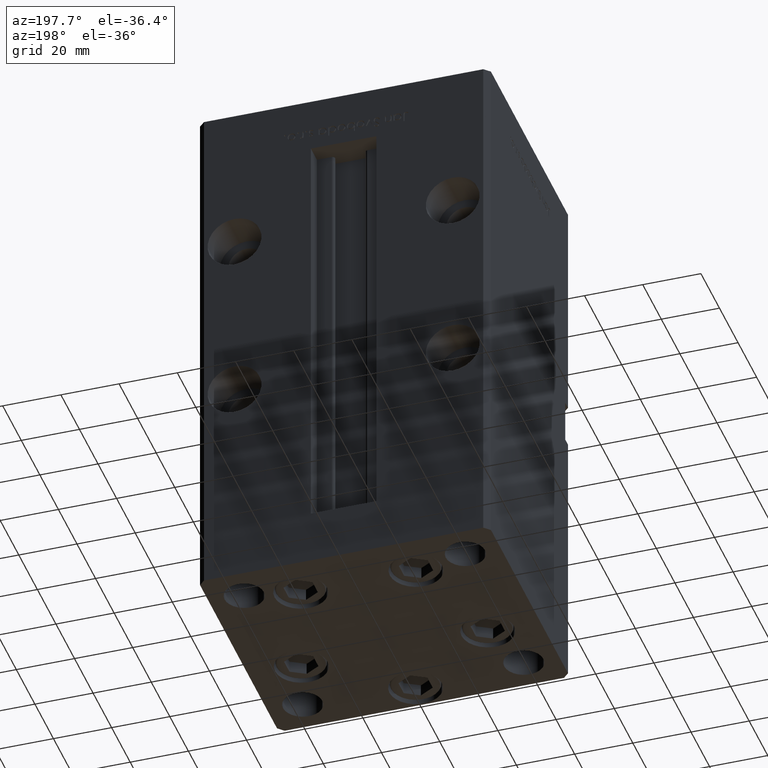
[diagram: clean part render]
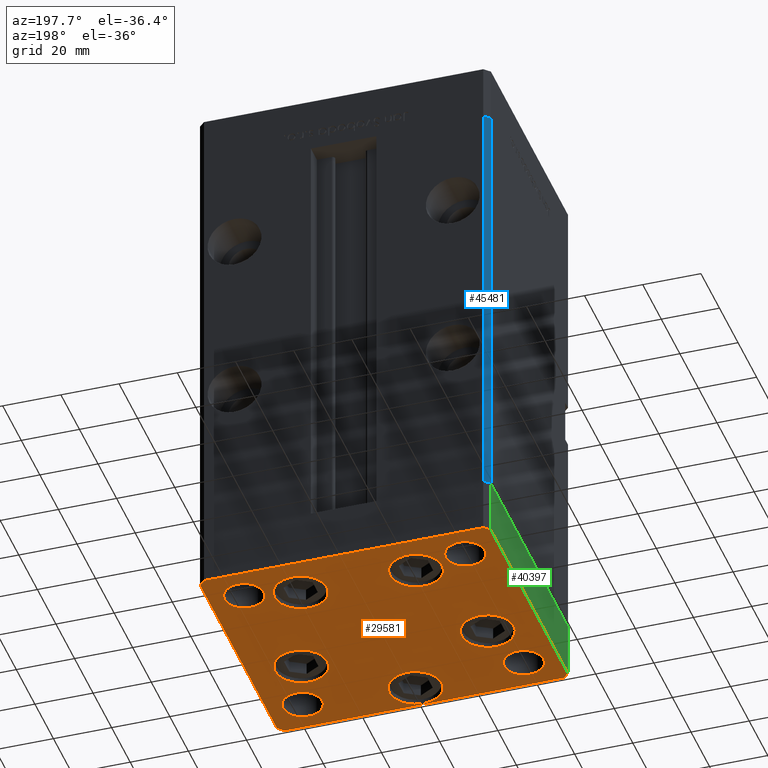
[diagram: same view with three faces highlighted in distinct colors, each labeled with its STEP entity id]
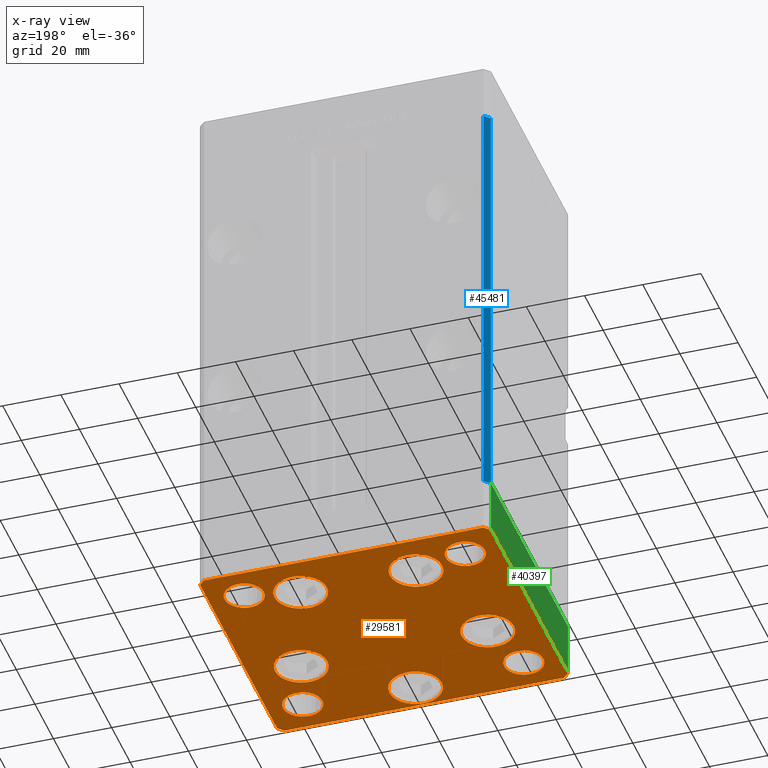
[diagram: x-ray of the same camera — body ghosted, the three highlighted faces saturated]
A machine part, auxiliary view with three faces highlighted in distinct colors.
The next image is the same camera in x-ray (body ghosted, the three faces saturated) — at least one of them is partly hidden behind the body in this view.
Their STEP definitions:

[orange] entity #29581 — the highlighted planar face has unit normal (0, 0, -1).
#52 = CIRCLE ( 'NONE', #30966, 6.749999999999999112 ) ;
#306 = DIRECTION ( 'NONE',  ( -0.7071067811865474617, 0.7071067811865474617, 0.000000000000000000 ) ) ;
#396 = AXIS2_PLACEMENT_3D ( 'NONE', #30750, #26975, #6271 ) ;
#981 = PLANE ( 'NONE',  #27596 ) ;
#1086 = CARTESIAN_POINT ( 'NONE',  ( 32.05550741379015278, -11.33333333333333037, 0.000000000000000000 ) ) ;
#1281 = LINE ( 'NONE', #30846, #45298 ) ;
#1287 = VERTEX_POINT ( 'NONE', #41773 ) ;
#1307 = DIRECTION ( 'NONE',  ( 0.000000000000000000, -0.000000000000000000, -1.000000000000000000 ) ) ;
#1400 = VERTEX_POINT ( 'NONE', #46856 ) ;
#1490 = EDGE_CURVE ( 'NONE', #19052, #15941, #44417, .T. ) ;
#1642 = AXIS2_PLACEMENT_3D ( 'NONE', #8586, #21211, #25267 ) ;
#1733 = LINE ( 'NONE', #32047, #11672 ) ;
#1771 = CARTESIAN_POINT ( 'NONE',  ( 49.99999999999992184, 41.49999999999998579, 0.000000000000000000 ) ) ;
#1773 = ORIENTED_EDGE ( 'NONE', *, *, #47420, .F. ) ;
#2261 = DIRECTION ( 'NONE',  ( 0.000000000000000000, -0.000000000000000000, -1.000000000000000000 ) ) ;
#2469 = DIRECTION ( 'NONE',  ( 1.000000000000000000, 0.000000000000000000, 0.000000000000000000 ) ) ;
#2500 = VERTEX_POINT ( 'NONE', #28803 ) ;
#2774 = ORIENTED_EDGE ( 'NONE', *, *, #43416, .F. ) ;
#2887 = CARTESIAN_POINT ( 'NONE',  ( 44.75000000000000000, -31.49999999999999289, 0.000000000000000000 ) ) ;
#3085 = AXIS2_PLACEMENT_3D ( 'NONE', #48079, #49082, #45033 ) ;
#3505 = DIRECTION ( 'NONE',  ( 0.000000000000000000, -0.000000000000000000, -1.000000000000000000 ) ) ;
#3568 = DIRECTION ( 'NONE',  ( 1.000000000000000000, 0.000000000000000000, 0.000000000000000000 ) ) ;
#3719 = DIRECTION ( 'NONE',  ( 0.000000000000000000, -0.000000000000000000, -1.000000000000000000 ) ) ;
#3876 = EDGE_CURVE ( 'NONE', #1400, #16276, #35657, .T. ) ;
#4382 = DIRECTION ( 'NONE',  ( 0.000000000000000000, -0.000000000000000000, -1.000000000000000000 ) ) ;
#4462 = VERTEX_POINT ( 'NONE', #45287 ) ;
#4759 = DIRECTION ( 'NONE',  ( -0.000000000000000000, 0.000000000000000000, 1.000000000000000000 ) ) ;
#5020 = FACE_BOUND ( 'NONE', #32022, .T. ) ;
#5085 = DIRECTION ( 'NONE',  ( 1.000000000000000000, 0.000000000000000000, 0.000000000000000000 ) ) ;
#5241 = EDGE_LOOP ( 'NONE', ( #24944, #47815, #18597, #10964, #10290, #32202, #12845, #45962 ) ) ;
#5277 = EDGE_CURVE ( 'NONE', #31648, #10567, #32261, .T. ) ;
#5287 = FACE_BOUND ( 'NONE', #37137, .T. ) ;
#5299 = ORIENTED_EDGE ( 'NONE', *, *, #23435, .T. ) ;
#5725 = VERTEX_POINT ( 'NONE', #33825 ) ;
#5831 = CARTESIAN_POINT ( 'NONE',  ( -50.00000000000000711, 41.49999999999995026, 0.000000000000000000 ) ) ;
#5896 = DIRECTION ( 'NONE',  ( 1.000000000000000000, 0.000000000000000000, 0.000000000000000000 ) ) ;
#6189 = EDGE_CURVE ( 'NONE', #15941, #32800, #1733, .T. ) ;
#6271 = DIRECTION ( 'NONE',  ( 1.000000000000000000, 0.000000000000000000, 0.000000000000000000 ) ) ;
#6681 = VECTOR ( 'NONE', #20938, 1000.000000000000000 ) ;
#7265 = CIRCLE ( 'NONE', #50189, 6.749999999999999112 ) ;
#7393 = AXIS2_PLACEMENT_3D ( 'NONE', #23748, #31278, #3568 ) ;
#7568 = CIRCLE ( 'NONE', #12711, 9.000000000000001776 ) ;
#7667 = ORIENTED_EDGE ( 'NONE', *, *, #3876, .T. ) ;
#7761 = CIRCLE ( 'NONE', #28338, 8.999999999999998224 ) ;
#8175 = VERTEX_POINT ( 'NONE', #18090 ) ;
#8280 = CARTESIAN_POINT ( 'NONE',  ( 23.05550741379014923, -11.33333333333333037, 0.000000000000000000 ) ) ;
#8456 = ORIENTED_EDGE ( 'NONE', *, *, #27555, .T. ) ;
#8586 = CARTESIAN_POINT ( 'NONE',  ( 38.00000000000000000, -31.49999999999999289, 0.000000000000000000 ) ) ;
#9061 = DIRECTION ( 'NONE',  ( 1.000000000000000000, 0.000000000000000000, 0.000000000000000000 ) ) ;
#9537 = CARTESIAN_POINT ( 'NONE',  ( -44.75000000000000000, 31.50000000000000000, 0.000000000000000000 ) ) ;
#9932 = CARTESIAN_POINT ( 'NONE',  ( 19.82068048781373193, 27.62500000000000000, 0.000000000000000000 ) ) ;
#10290 = ORIENTED_EDGE ( 'NONE', *, *, #25406, .T. ) ;
#10332 = EDGE_LOOP ( 'NONE', ( #5299, #7667 ) ) ;
#10567 = VERTEX_POINT ( 'NONE', #42595 ) ;
#10651 = CARTESIAN_POINT ( 'NONE',  ( -50.00000000000000000, -41.50000000000000000, 0.000000000000000000 ) ) ;
#10964 = ORIENTED_EDGE ( 'NONE', *, *, #13181, .T. ) ;
#11186 = ORIENTED_EDGE ( 'NONE', *, *, #38516, .T. ) ;
#11369 = AXIS2_PLACEMENT_3D ( 'NONE', #30618, #1307, #5085 ) ;
#11592 = CARTESIAN_POINT ( 'NONE',  ( -32.05550741379015278, -11.33333333333333925, 0.000000000000000000 ) ) ;
#11602 = CIRCLE ( 'NONE', #27075, 6.749999999999999112 ) ;
#11672 = VECTOR ( 'NONE', #18142, 1000.000000000000000 ) ;
#11702 = LINE ( 'NONE', #49039, #43828 ) ;
#11928 = ORIENTED_EDGE ( 'NONE', *, *, #48209, .T. ) ;
#12008 = EDGE_CURVE ( 'NONE', #27109, #2500, #7568, .T. ) ;
#12292 = CARTESIAN_POINT ( 'NONE',  ( 47.99999999999990763, 43.50000000000000000, 0.000000000000000000 ) ) ;
#12481 = ORIENTED_EDGE ( 'NONE', *, *, #51299, .T. ) ;
#12564 = EDGE_CURVE ( 'NONE', #32800, #8175, #1281, .T. ) ;
#12580 = VERTEX_POINT ( 'NONE', #39418 ) ;
#12711 = AXIS2_PLACEMENT_3D ( 'NONE', #11592, #43568, #2469 ) ;
#12845 = ORIENTED_EDGE ( 'NONE', *, *, #46149, .T. ) ;
#13019 = ORIENTED_EDGE ( 'NONE', *, *, #16947, .T. ) ;
#13181 = EDGE_CURVE ( 'NONE', #8175, #32987, #40810, .T. ) ;
#13588 = VERTEX_POINT ( 'NONE', #47348 ) ;
#13973 = AXIS2_PLACEMENT_3D ( 'NONE', #46139, #33542, #50426 ) ;
#14255 = EDGE_LOOP ( 'NONE', ( #29991, #41208 ) ) ;
#14423 = ORIENTED_EDGE ( 'NONE', *, *, #5277, .T. ) ;
#15813 = ORIENTED_EDGE ( 'NONE', *, *, #49250, .T. ) ;
#15941 = VERTEX_POINT ( 'NONE', #50203 ) ;
#16214 = DIRECTION ( 'NONE',  ( 0.7071067811865474617, -0.7071067811865474617, 0.000000000000000000 ) ) ;
#16276 = VERTEX_POINT ( 'NONE', #41277 ) ;
#16642 = CARTESIAN_POINT ( 'NONE',  ( 50.00000000000000000, -41.49999999999999289, 0.000000000000000000 ) ) ;
#16947 = EDGE_CURVE ( 'NONE', #46825, #32863, #25742, .T. ) ;
#16988 = CARTESIAN_POINT ( 'NONE',  ( -23.05550741379014923, -11.33333333333333748, 0.000000000000000000 ) ) ;
#17080 = EDGE_LOOP ( 'NONE', ( #13019, #12481 ) ) ;
#17220 = DIRECTION ( 'NONE',  ( 0.000000000000000000, -0.000000000000000000, -1.000000000000000000 ) ) ;
#17392 = CARTESIAN_POINT ( 'NONE',  ( 0.000000000000000000, 0.000000000000000000, 0.000000000000000000 ) ) ;
#18090 = CARTESIAN_POINT ( 'NONE',  ( 50.00000000000000000, -41.49999999999999289, 0.000000000000000000 ) ) ;
#18142 = DIRECTION ( 'NONE',  ( 1.000000000000000000, 0.000000000000000000, 0.000000000000000000 ) ) ;
#18456 = AXIS2_PLACEMENT_3D ( 'NONE', #22692, #2261, #50114 ) ;
#18597 = ORIENTED_EDGE ( 'NONE', *, *, #12564, .T. ) ;
#18764 = DIRECTION ( 'NONE',  ( 0.000000000000000000, -0.000000000000000000, -1.000000000000000000 ) ) ;
#18873 = CARTESIAN_POINT ( 'NONE',  ( -48.00000000000000711, 43.49999999999996447, 0.000000000000000000 ) ) ;
#19052 = VERTEX_POINT ( 'NONE', #10651 ) ;
#19111 = EDGE_LOOP ( 'NONE', ( #39350, #1773 ) ) ;
#19356 = DIRECTION ( 'NONE',  ( 0.000000000000000000, -0.000000000000000000, -1.000000000000000000 ) ) ;
#19848 = CARTESIAN_POINT ( 'NONE',  ( 19.82068048781373193, 27.62500000000000000, 0.000000000000000000 ) ) ;
#20240 = CIRCLE ( 'NONE', #27114, 9.000000000000001776 ) ;
#20938 = DIRECTION ( 'NONE',  ( -1.003213576468515193E-15, 1.000000000000000000, 0.000000000000000000 ) ) ;
#21036 = DIRECTION ( 'NONE',  ( 1.000000000000000000, 0.000000000000000000, 0.000000000000000000 ) ) ;
#21211 = DIRECTION ( 'NONE',  ( 0.000000000000000000, -0.000000000000000000, -1.000000000000000000 ) ) ;
#21529 = VECTOR ( 'NONE', #32473, 1000.000000000000000 ) ;
#21680 = FACE_BOUND ( 'NONE', #38978, .T. ) ;
#22407 = VECTOR ( 'NONE', #306, 1000.000000000000114 ) ;
#22692 = CARTESIAN_POINT ( 'NONE',  ( -19.82068048781373903, 27.62499999999999645, 0.000000000000000000 ) ) ;
#23435 = EDGE_CURVE ( 'NONE', #16276, #1400, #44597, .T. ) ;
#23748 = CARTESIAN_POINT ( 'NONE',  ( 4.163799117101000559E-15, -34.00000000000000000, 0.000000000000000000 ) ) ;
#23788 = EDGE_CURVE ( 'NONE', #34338, #43801, #7761, .T. ) ;
#24542 = CARTESIAN_POINT ( 'NONE',  ( 49.99999999999992184, 41.49999999999998579, 0.000000000000000000 ) ) ;
#24944 = ORIENTED_EDGE ( 'NONE', *, *, #1490, .T. ) ;
#25267 = DIRECTION ( 'NONE',  ( 1.000000000000000000, 0.000000000000000000, 0.000000000000000000 ) ) ;
#25406 = EDGE_CURVE ( 'NONE', #32987, #30421, #32592, .T. ) ;
#25742 = CIRCLE ( 'NONE', #1642, 6.749999999999999112 ) ;
#25744 = CARTESIAN_POINT ( 'NONE',  ( -38.00000000000000000, 31.50000000000000000, 0.000000000000000000 ) ) ;
#25796 = EDGE_CURVE ( 'NONE', #13588, #30032, #28419, .T. ) ;
#25881 = EDGE_CURVE ( 'NONE', #30421, #4462, #37024, .T. ) ;
#26172 = EDGE_CURVE ( 'NONE', #39361, #19052, #11702, .T. ) ;
#26917 = CARTESIAN_POINT ( 'NONE',  ( 28.82068048781372838, 27.62500000000000000, 0.000000000000000000 ) ) ;
#26947 = LINE ( 'NONE', #18873, #49390 ) ;
#26975 = DIRECTION ( 'NONE',  ( -0.000000000000000000, 0.000000000000000000, 1.000000000000000000 ) ) ;
#27075 = AXIS2_PLACEMENT_3D ( 'NONE', #28238, #19356, #39239 ) ;
#27109 = VERTEX_POINT ( 'NONE', #16988 ) ;
#27114 = AXIS2_PLACEMENT_3D ( 'NONE', #36291, #3505, #36022 ) ;
#27555 = EDGE_CURVE ( 'NONE', #44473, #5725, #34549, .T. ) ;
#27596 = AXIS2_PLACEMENT_3D ( 'NONE', #17392, #38067, #33791 ) ;
#27797 = CARTESIAN_POINT ( 'NONE',  ( 38.00000000000000000, 31.49999999999999289, 0.000000000000000000 ) ) ;
#27968 = CARTESIAN_POINT ( 'NONE',  ( -38.00000000000000000, 31.50000000000000000, 0.000000000000000000 ) ) ;
#28238 = CARTESIAN_POINT ( 'NONE',  ( -37.99999999999999289, -31.50000000000000000, 0.000000000000000000 ) ) ;
#28338 = AXIS2_PLACEMENT_3D ( 'NONE', #9932, #17220, #5896 ) ;
#28419 = CIRCLE ( 'NONE', #44708, 9.000000000000000000 ) ;
#28594 = DIRECTION ( 'NONE',  ( -0.000000000000000000, 0.000000000000000000, 1.000000000000000000 ) ) ;
#28803 = CARTESIAN_POINT ( 'NONE',  ( -41.05550741379015278, -11.33333333333333925, 0.000000000000000000 ) ) ;
#29253 = CARTESIAN_POINT ( 'NONE',  ( 47.99999999999999289, -43.50000000000001421, 0.000000000000000000 ) ) ;
#29510 = FACE_BOUND ( 'NONE', #17080, .T. ) ;
#29581 = ADVANCED_FACE ( 'NONE', ( #33269, #5287, #49888, #5020, #46125, #37808, #29510, #46383, #45848, #21680 ), #981, .T. ) ;
#29991 = ORIENTED_EDGE ( 'NONE', *, *, #50234, .T. ) ;
#30032 = VERTEX_POINT ( 'NONE', #47894 ) ;
#30170 = CARTESIAN_POINT ( 'NONE',  ( 47.99999999999990763, 43.50000000000000000, 0.000000000000000000 ) ) ;
#30189 = CARTESIAN_POINT ( 'NONE',  ( -44.74999999999999289, -31.50000000000000000, 0.000000000000000000 ) ) ;
#30421 = VERTEX_POINT ( 'NONE', #30170 ) ;
#30438 = CARTESIAN_POINT ( 'NONE',  ( 10.82068048781373193, 27.62500000000000000, 0.000000000000000000 ) ) ;
#30618 = CARTESIAN_POINT ( 'NONE',  ( -37.99999999999999289, -31.50000000000000000, 0.000000000000000000 ) ) ;
#30750 = CARTESIAN_POINT ( 'NONE',  ( 38.00000000000000000, 31.49999999999999289, 0.000000000000000000 ) ) ;
#30846 = CARTESIAN_POINT ( 'NONE',  ( 47.99999999999999289, -43.50000000000001421, 0.000000000000000000 ) ) ;
#30966 = AXIS2_PLACEMENT_3D ( 'NONE', #27797, #28594, #48182 ) ;
#31269 = VERTEX_POINT ( 'NONE', #38473 ) ;
#31278 = DIRECTION ( 'NONE',  ( 0.000000000000000000, -0.000000000000000000, -1.000000000000000000 ) ) ;
#31417 = AXIS2_PLACEMENT_3D ( 'NONE', #1086, #42972, #38171 ) ;
#31648 = VERTEX_POINT ( 'NONE', #8280 ) ;
#31944 = EDGE_CURVE ( 'NONE', #1287, #31269, #52, .T. ) ;
#32022 = EDGE_LOOP ( 'NONE', ( #11928, #50440 ) ) ;
#32047 = CARTESIAN_POINT ( 'NONE',  ( -47.99999999999999289, -43.50000000000001421, 0.000000000000000000 ) ) ;
#32202 = ORIENTED_EDGE ( 'NONE', *, *, #25881, .T. ) ;
#32261 = CIRCLE ( 'NONE', #31417, 9.000000000000001776 ) ;
#32410 = DIRECTION ( 'NONE',  ( 8.360113137237628665E-17, -1.000000000000000000, 0.000000000000000000 ) ) ;
#32473 = DIRECTION ( 'NONE',  ( -1.000000000000000000, -3.614007241618350743E-16, 0.000000000000000000 ) ) ;
#32592 = LINE ( 'NONE', #24542, #22407 ) ;
#32800 = VERTEX_POINT ( 'NONE', #29253 ) ;
#32863 = VERTEX_POINT ( 'NONE', #33798 ) ;
#32987 = VERTEX_POINT ( 'NONE', #1771 ) ;
#33269 = FACE_BOUND ( 'NONE', #10332, .T. ) ;
#33542 = DIRECTION ( 'NONE',  ( 0.000000000000000000, -0.000000000000000000, -1.000000000000000000 ) ) ;
#33791 = DIRECTION ( 'NONE',  ( 1.000000000000000000, 0.000000000000000000, 0.000000000000000000 ) ) ;
#33798 = CARTESIAN_POINT ( 'NONE',  ( 31.25000000000000000, -31.49999999999999289, 0.000000000000000000 ) ) ;
#33825 = CARTESIAN_POINT ( 'NONE',  ( -31.24999999999999289, -31.50000000000000000, 0.000000000000000000 ) ) ;
#34338 = VERTEX_POINT ( 'NONE', #30438 ) ;
#34549 = CIRCLE ( 'NONE', #11369, 6.749999999999999112 ) ;
#34598 = AXIS2_PLACEMENT_3D ( 'NONE', #19848, #3719, #36755 ) ;
#35163 = DIRECTION ( 'NONE',  ( 1.000000000000000000, 0.000000000000000000, 0.000000000000000000 ) ) ;
#35657 = CIRCLE ( 'NONE', #18456, 9.000000000000000000 ) ;
#36022 = DIRECTION ( 'NONE',  ( 1.000000000000000000, 0.000000000000000000, 0.000000000000000000 ) ) ;
#36291 = CARTESIAN_POINT ( 'NONE',  ( -32.05550741379015278, -11.33333333333333925, 0.000000000000000000 ) ) ;
#36623 = CARTESIAN_POINT ( 'NONE',  ( -19.82068048781373903, 27.62499999999999645, 0.000000000000000000 ) ) ;
#36755 = DIRECTION ( 'NONE',  ( 1.000000000000000000, 0.000000000000000000, 0.000000000000000000 ) ) ;
#37024 = LINE ( 'NONE', #12292, #21529 ) ;
#37128 = CIRCLE ( 'NONE', #43971, 6.749999999999999112 ) ;
#37137 = EDGE_LOOP ( 'NONE', ( #42264, #48571 ) ) ;
#37559 = EDGE_CURVE ( 'NONE', #12580, #40897, #37128, .T. ) ;
#37808 = FACE_BOUND ( 'NONE', #53172, .T. ) ;
#38067 = DIRECTION ( 'NONE',  ( -0.000000000000000000, 0.000000000000000000, 1.000000000000000000 ) ) ;
#38171 = DIRECTION ( 'NONE',  ( 1.000000000000000000, 0.000000000000000000, 0.000000000000000000 ) ) ;
#38419 = EDGE_CURVE ( 'NONE', #43801, #34338, #44819, .T. ) ;
#38473 = CARTESIAN_POINT ( 'NONE',  ( 31.25000000000000000, 31.49999999999999289, 0.000000000000000000 ) ) ;
#38516 = EDGE_CURVE ( 'NONE', #10567, #31648, #47456, .T. ) ;
#38978 = EDGE_LOOP ( 'NONE', ( #15813, #8456 ) ) ;
#39239 = DIRECTION ( 'NONE',  ( 1.000000000000000000, 0.000000000000000000, 0.000000000000000000 ) ) ;
#39350 = ORIENTED_EDGE ( 'NONE', *, *, #37559, .F. ) ;
#39361 = VERTEX_POINT ( 'NONE', #5831 ) ;
#39418 = CARTESIAN_POINT ( 'NONE',  ( -31.25000000000000000, 31.50000000000000000, 0.000000000000000000 ) ) ;
#39556 = DIRECTION ( 'NONE',  ( -0.7071067811865463515, -0.7071067811865487940, 0.000000000000000000 ) ) ;
#40425 = ORIENTED_EDGE ( 'NONE', *, *, #31944, .F. ) ;
#40810 = LINE ( 'NONE', #16642, #6681 ) ;
#40897 = VERTEX_POINT ( 'NONE', #9537 ) ;
#41208 = ORIENTED_EDGE ( 'NONE', *, *, #12008, .T. ) ;
#41277 = CARTESIAN_POINT ( 'NONE',  ( -28.82068048781373548, 27.62499999999999645, 0.000000000000000000 ) ) ;
#41773 = CARTESIAN_POINT ( 'NONE',  ( 44.75000000000000000, 31.49999999999999289, 0.000000000000000000 ) ) ;
#42264 = ORIENTED_EDGE ( 'NONE', *, *, #23788, .T. ) ;
#42533 = CIRCLE ( 'NONE', #3085, 6.749999999999999112 ) ;
#42595 = CARTESIAN_POINT ( 'NONE',  ( 41.05550741379015278, -11.33333333333332860, 0.000000000000000000 ) ) ;
#42808 = EDGE_LOOP ( 'NONE', ( #14423, #11186 ) ) ;
#42937 = CARTESIAN_POINT ( 'NONE',  ( 4.163799117101000559E-15, -34.00000000000000000, 0.000000000000000000 ) ) ;
#42972 = DIRECTION ( 'NONE',  ( 0.000000000000000000, -0.000000000000000000, -1.000000000000000000 ) ) ;
#43416 = EDGE_CURVE ( 'NONE', #31269, #1287, #47601, .T. ) ;
#43568 = DIRECTION ( 'NONE',  ( 0.000000000000000000, -0.000000000000000000, -1.000000000000000000 ) ) ;
#43801 = VERTEX_POINT ( 'NONE', #26917 ) ;
#43828 = VECTOR ( 'NONE', #32410, 1000.000000000000000 ) ;
#43971 = AXIS2_PLACEMENT_3D ( 'NONE', #25744, #4759, #9061 ) ;
#44143 = CARTESIAN_POINT ( 'NONE',  ( -50.00000000000000000, -41.50000000000000000, 0.000000000000000000 ) ) ;
#44417 = LINE ( 'NONE', #44143, #47674 ) ;
#44473 = VERTEX_POINT ( 'NONE', #30189 ) ;
#44597 = CIRCLE ( 'NONE', #45477, 9.000000000000000000 ) ;
#44708 = AXIS2_PLACEMENT_3D ( 'NONE', #42937, #18764, #35163 ) ;
#44819 = CIRCLE ( 'NONE', #34598, 8.999999999999998224 ) ;
#45033 = DIRECTION ( 'NONE',  ( 1.000000000000000000, 0.000000000000000000, 0.000000000000000000 ) ) ;
#45287 = CARTESIAN_POINT ( 'NONE',  ( -48.00000000000000711, 43.49999999999996447, 0.000000000000000000 ) ) ;
#45298 = VECTOR ( 'NONE', #51498, 1000.000000000000000 ) ;
#45477 = AXIS2_PLACEMENT_3D ( 'NONE', #36623, #4382, #21036 ) ;
#45848 = FACE_OUTER_BOUND ( 'NONE', #5241, .T. ) ;
#45962 = ORIENTED_EDGE ( 'NONE', *, *, #26172, .T. ) ;
#46125 = FACE_BOUND ( 'NONE', #14255, .T. ) ;
#46139 = CARTESIAN_POINT ( 'NONE',  ( 32.05550741379015278, -11.33333333333333037, 0.000000000000000000 ) ) ;
#46149 = EDGE_CURVE ( 'NONE', #4462, #39361, #26947, .T. ) ;
#46383 = FACE_BOUND ( 'NONE', #19111, .T. ) ;
#46825 = VERTEX_POINT ( 'NONE', #2887 ) ;
#46856 = CARTESIAN_POINT ( 'NONE',  ( -10.82068048781373903, 27.62499999999999645, 0.000000000000000000 ) ) ;
#47348 = CARTESIAN_POINT ( 'NONE',  ( 9.000000000000003553, -34.00000000000000000, 0.000000000000000000 ) ) ;
#47420 = EDGE_CURVE ( 'NONE', #40897, #12580, #7265, .T. ) ;
#47456 = CIRCLE ( 'NONE', #13973, 9.000000000000001776 ) ;
#47601 = CIRCLE ( 'NONE', #396, 6.749999999999999112 ) ;
#47674 = VECTOR ( 'NONE', #16214, 1000.000000000000114 ) ;
#47815 = ORIENTED_EDGE ( 'NONE', *, *, #6189, .T. ) ;
#47894 = CARTESIAN_POINT ( 'NONE',  ( -8.999999999999996447, -34.00000000000000000, 0.000000000000000000 ) ) ;
#48079 = CARTESIAN_POINT ( 'NONE',  ( 38.00000000000000000, -31.49999999999999289, 0.000000000000000000 ) ) ;
#48182 = DIRECTION ( 'NONE',  ( 1.000000000000000000, 0.000000000000000000, 0.000000000000000000 ) ) ;
#48209 = EDGE_CURVE ( 'NONE', #30032, #13588, #48578, .T. ) ;
#48571 = ORIENTED_EDGE ( 'NONE', *, *, #38419, .T. ) ;
#48578 = CIRCLE ( 'NONE', #7393, 9.000000000000000000 ) ;
#49039 = CARTESIAN_POINT ( 'NONE',  ( -50.00000000000000711, 41.49999999999995026, 0.000000000000000000 ) ) ;
#49082 = DIRECTION ( 'NONE',  ( 0.000000000000000000, -0.000000000000000000, -1.000000000000000000 ) ) ;
#49250 = EDGE_CURVE ( 'NONE', #5725, #44473, #11602, .T. ) ;
#49390 = VECTOR ( 'NONE', #39556, 1000.000000000000000 ) ;
#49888 = FACE_BOUND ( 'NONE', #42808, .T. ) ;
#50114 = DIRECTION ( 'NONE',  ( 1.000000000000000000, 0.000000000000000000, 0.000000000000000000 ) ) ;
#50189 = AXIS2_PLACEMENT_3D ( 'NONE', #27968, #52916, #52648 ) ;
#50203 = CARTESIAN_POINT ( 'NONE',  ( -47.99999999999999289, -43.50000000000001421, 0.000000000000000000 ) ) ;
#50234 = EDGE_CURVE ( 'NONE', #2500, #27109, #20240, .T. ) ;
#50426 = DIRECTION ( 'NONE',  ( 1.000000000000000000, 0.000000000000000000, 0.000000000000000000 ) ) ;
#50440 = ORIENTED_EDGE ( 'NONE', *, *, #25796, .T. ) ;
#51299 = EDGE_CURVE ( 'NONE', #32863, #46825, #42533, .T. ) ;
#51498 = DIRECTION ( 'NONE',  ( 0.7071067811865463515, 0.7071067811865487940, 0.000000000000000000 ) ) ;
#52648 = DIRECTION ( 'NONE',  ( 1.000000000000000000, 0.000000000000000000, 0.000000000000000000 ) ) ;
#52916 = DIRECTION ( 'NONE',  ( -0.000000000000000000, 0.000000000000000000, 1.000000000000000000 ) ) ;
#53172 = EDGE_LOOP ( 'NONE', ( #40425, #2774 ) ) ;

[blue] entity #45481 — the highlighted planar face has unit normal (0.7071, -0.7071, 0).
#540 = DIRECTION ( 'NONE',  ( -0.000000000000000000, -0.000000000000000000, -1.000000000000000000 ) ) ;
#3500 = CARTESIAN_POINT ( 'NONE',  ( -48.00000000000000711, 43.50000000000000000, 148.5000000000000000 ) ) ;
#4174 = ORIENTED_EDGE ( 'NONE', *, *, #39242, .F. ) ;
#4583 = LINE ( 'NONE', #20979, #7160 ) ;
#5048 = LINE ( 'NONE', #21181, #37167 ) ;
#6965 = DIRECTION ( 'NONE',  ( 0.7071067811865487940, 0.7071067811865463515, 0.000000000000000000 ) ) ;
#7160 = VECTOR ( 'NONE', #540, 1000.000000000000000 ) ;
#7258 = DIRECTION ( 'NONE',  ( -0.000000000000000000, -0.000000000000000000, -1.000000000000000000 ) ) ;
#8260 = VERTEX_POINT ( 'NONE', #8374 ) ;
#8374 = CARTESIAN_POINT ( 'NONE',  ( -50.00000000000001421, 41.49999999999999289, 0.000000000000000000 ) ) ;
#13374 = DIRECTION ( 'NONE',  ( -0.7071067811865487940, -0.7071067811865463515, 0.000000000000000000 ) ) ;
#13766 = CARTESIAN_POINT ( 'NONE',  ( -48.00000000000000711, 43.50000000000000000, 148.5000000000000000 ) ) ;
#14490 = PLANE ( 'NONE',  #33959 ) ;
#15017 = LINE ( 'NONE', #52350, #21968 ) ;
#15557 = DIRECTION ( 'NONE',  ( -0.7071067811865487940, -0.7071067811865463515, 0.000000000000000000 ) ) ;
#19248 = EDGE_LOOP ( 'NONE', ( #45472, #31291, #4174, #43207 ) ) ;
#20618 = VERTEX_POINT ( 'NONE', #51497 ) ;
#20979 = CARTESIAN_POINT ( 'NONE',  ( -50.00000000000001421, 41.49999999999999289, 148.5000000000000000 ) ) ;
#21181 = CARTESIAN_POINT ( 'NONE',  ( -48.00000000000000711, 43.50000000000000000, 148.5000000000000000 ) ) ;
#21968 = VECTOR ( 'NONE', #15557, 1000.000000000000000 ) ;
#23646 = CARTESIAN_POINT ( 'NONE',  ( -48.00000000000000711, 43.50000000000000000, 148.5000000000000000 ) ) ;
#27285 = EDGE_CURVE ( 'NONE', #53055, #42213, #44056, .T. ) ;
#31291 = ORIENTED_EDGE ( 'NONE', *, *, #40268, .F. ) ;
#31791 = CARTESIAN_POINT ( 'NONE',  ( -48.00000000000000711, 43.50000000000000000, 0.000000000000000000 ) ) ;
#32879 = VECTOR ( 'NONE', #7258, 1000.000000000000000 ) ;
#33959 = AXIS2_PLACEMENT_3D ( 'NONE', #23646, #39481, #6965 ) ;
#35727 = FACE_OUTER_BOUND ( 'NONE', #19248, .T. ) ;
#37167 = VECTOR ( 'NONE', #13374, 1000.000000000000000 ) ;
#39242 = EDGE_CURVE ( 'NONE', #53055, #20618, #5048, .T. ) ;
#39481 = DIRECTION ( 'NONE',  ( 0.7071067811865463515, -0.7071067811865487940, 0.000000000000000000 ) ) ;
#40268 = EDGE_CURVE ( 'NONE', #20618, #8260, #4583, .T. ) ;
#42213 = VERTEX_POINT ( 'NONE', #31791 ) ;
#43207 = ORIENTED_EDGE ( 'NONE', *, *, #27285, .T. ) ;
#44056 = LINE ( 'NONE', #3500, #32879 ) ;
#45472 = ORIENTED_EDGE ( 'NONE', *, *, #51491, .T. ) ;
#45481 = ADVANCED_FACE ( 'NONE', ( #35727 ), #14490, .F. ) ;
#51491 = EDGE_CURVE ( 'NONE', #42213, #8260, #15017, .T. ) ;
#51497 = CARTESIAN_POINT ( 'NONE',  ( -50.00000000000001421, 41.49999999999999289, 148.5000000000000000 ) ) ;
#52350 = CARTESIAN_POINT ( 'NONE',  ( -48.00000000000000711, 43.50000000000000000, 0.000000000000000000 ) ) ;
#53055 = VERTEX_POINT ( 'NONE', #13766 ) ;

[green] entity #40397 — the highlighted planar face has unit normal (-1, -0, 0).
#213 = CARTESIAN_POINT ( 'NONE',  ( 50.00000000000000000, -41.49999999999999289, -19.00000000000000000 ) ) ;
#453 = VERTEX_POINT ( 'NONE', #28783 ) ;
#1498 = ORIENTED_EDGE ( 'NONE', *, *, #13181, .F. ) ;
#1771 = CARTESIAN_POINT ( 'NONE',  ( 49.99999999999992184, 41.49999999999998579, 0.000000000000000000 ) ) ;
#2397 = CARTESIAN_POINT ( 'NONE',  ( 50.00000000000000000, -41.49999999999999289, -19.00000000000000000 ) ) ;
#3481 = ORIENTED_EDGE ( 'NONE', *, *, #11518, .F. ) ;
#5188 = CARTESIAN_POINT ( 'NONE',  ( 50.00000000000000000, -41.49999999999999289, -19.00000000000000000 ) ) ;
#6681 = VECTOR ( 'NONE', #20938, 1000.000000000000000 ) ;
#8175 = VERTEX_POINT ( 'NONE', #18090 ) ;
#8923 = CARTESIAN_POINT ( 'NONE',  ( 49.99999999999992184, 41.49999999999998579, -19.00000000000000000 ) ) ;
#9221 = VECTOR ( 'NONE', #16627, 1000.000000000000000 ) ;
#11518 = EDGE_CURVE ( 'NONE', #35211, #8175, #12591, .T. ) ;
#12483 = VECTOR ( 'NONE', #47034, 1000.000000000000000 ) ;
#12591 = LINE ( 'NONE', #213, #9221 ) ;
#13181 = EDGE_CURVE ( 'NONE', #8175, #32987, #40810, .T. ) ;
#13955 = FACE_OUTER_BOUND ( 'NONE', #43459, .T. ) ;
#14284 = ORIENTED_EDGE ( 'NONE', *, *, #50044, .T. ) ;
#16627 = DIRECTION ( 'NONE',  ( 0.000000000000000000, 0.000000000000000000, 1.000000000000000000 ) ) ;
#16642 = CARTESIAN_POINT ( 'NONE',  ( 50.00000000000000000, -41.49999999999999289, 0.000000000000000000 ) ) ;
#18090 = CARTESIAN_POINT ( 'NONE',  ( 50.00000000000000000, -41.49999999999999289, 0.000000000000000000 ) ) ;
#18785 = DIRECTION ( 'NONE',  ( 1.000000000000000000, 1.003213576468515193E-15, -0.000000000000000000 ) ) ;
#19056 = DIRECTION ( 'NONE',  ( -1.003213576468515193E-15, 1.000000000000000000, 0.000000000000000000 ) ) ;
#20938 = DIRECTION ( 'NONE',  ( -1.003213576468515193E-15, 1.000000000000000000, 0.000000000000000000 ) ) ;
#21742 = AXIS2_PLACEMENT_3D ( 'NONE', #2397, #18785, #19056 ) ;
#22831 = PLANE ( 'NONE',  #21742 ) ;
#28783 = CARTESIAN_POINT ( 'NONE',  ( 49.99999999999992184, 41.49999999999998579, -19.00000000000000000 ) ) ;
#30944 = LINE ( 'NONE', #39251, #12483 ) ;
#32987 = VERTEX_POINT ( 'NONE', #1771 ) ;
#35211 = VERTEX_POINT ( 'NONE', #5188 ) ;
#39251 = CARTESIAN_POINT ( 'NONE',  ( 50.00000000000000000, -41.49999999999999289, -19.00000000000000000 ) ) ;
#40397 = ADVANCED_FACE ( 'NONE', ( #13955 ), #22831, .T. ) ;
#40810 = LINE ( 'NONE', #16642, #6681 ) ;
#41685 = DIRECTION ( 'NONE',  ( 0.000000000000000000, 0.000000000000000000, 1.000000000000000000 ) ) ;
#43459 = EDGE_LOOP ( 'NONE', ( #1498, #3481, #51681, #14284 ) ) ;
#45450 = LINE ( 'NONE', #8923, #51092 ) ;
#47034 = DIRECTION ( 'NONE',  ( -1.003213576468515193E-15, 1.000000000000000000, 0.000000000000000000 ) ) ;
#50044 = EDGE_CURVE ( 'NONE', #453, #32987, #45450, .T. ) ;
#50161 = EDGE_CURVE ( 'NONE', #35211, #453, #30944, .T. ) ;
#51092 = VECTOR ( 'NONE', #41685, 1000.000000000000000 ) ;
#51681 = ORIENTED_EDGE ( 'NONE', *, *, #50161, .T. ) ;